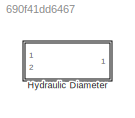
MODEL slx_690f41dd6467
KIND library
CONFIG AbsTol = auto
CONFIG FixedStep = auto
CONFIG MaxStep = auto
CONFIG MinStep = auto
CONFIG RelTol = 1e-3
CONFIG SampleTimeConstraint = Unconstrained
CONFIG Solver = ode45
CONFIG SolverMode = Auto
CONFIG SolverName = ode45
CONFIG StartTime = 0.0
CONFIG StopTime = 10.0
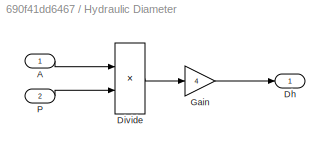
BLOCK [SubSystem] Hydraulic Diameter
  Ports = [2, 1]
  RequestExecContextInheritance = off
BLOCK [Inport] Hydraulic Diameter/A
  IconDisplay = Port number
BLOCK [Outport] Hydraulic Diameter/Dh
  IconDisplay = Port number
BLOCK [Product] Hydraulic Diameter/Divide
  InputSameDT = off
  Inputs = */
  OutDataTypeStr = Inherit: Inherit via internal rule
  Ports = [2, 1]
  RndMeth = Floor
  SaturateOnIntegerOverflow = off
BLOCK [Gain] Hydraulic Diameter/Gain
  Gain = 4
  OutDataTypeStr = Inherit: Inherit via internal rule
  ParamDataTypeStr = Inherit: Inherit via internal rule
  SaturateOnIntegerOverflow = off
BLOCK [Inport] Hydraulic Diameter/P
  IconDisplay = Port number
  Port = 2
LINE Hydraulic Diameter/A:1 -> Hydraulic Diameter/Divide:1
LINE Hydraulic Diameter/Divide:1 -> Hydraulic Diameter/Gain:1
LINE Hydraulic Diameter/Gain:1 -> Hydraulic Diameter/Dh:1
LINE Hydraulic Diameter/P:1 -> Hydraulic Diameter/Divide:2
